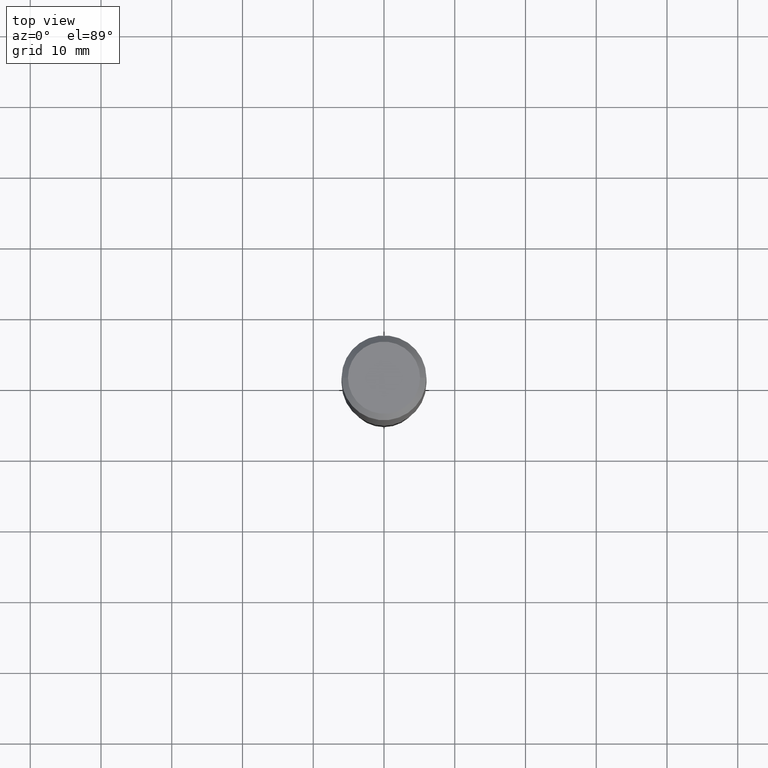
[diagram: clean part render]
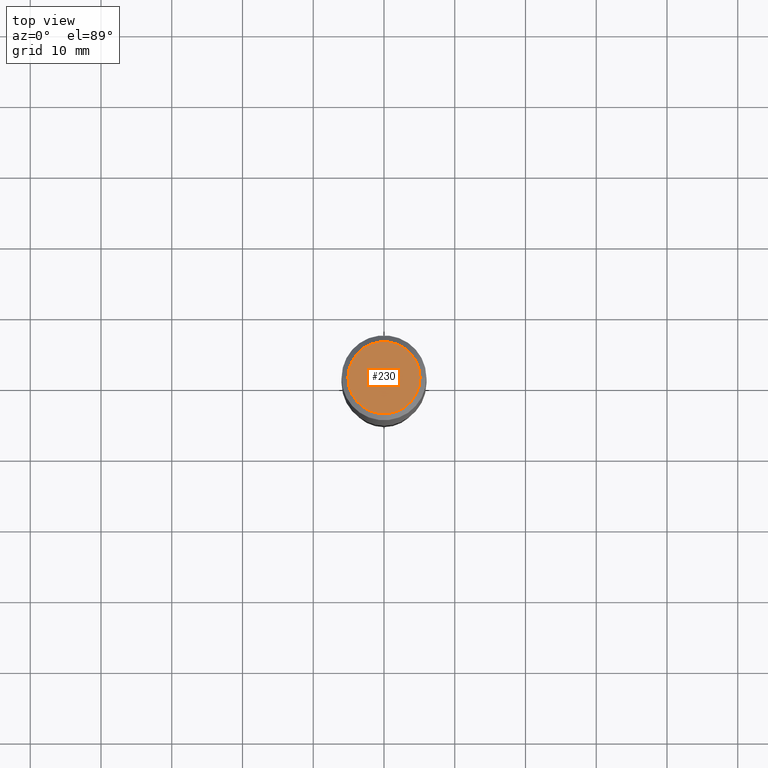
[diagram: same view with one face highlighted and labeled with its STEP entity id]
A machine part, top view. The second image highlights one B-rep face of the part: STEP entity #230.
In plain terms, the highlighted planar face has unit normal (0, -0, -1).
Its self-contained STEP definition (entity closure, byte-faithful):
#12 = EDGE_CURVE ( 'NONE', #435, #448, #154, .T. ) ;
#16 = AXIS2_PLACEMENT_3D ( 'NONE', #92, #436, #256 ) ;
#55 = PLANE ( 'NONE',  #16 ) ;
#85 = EDGE_LOOP ( 'NONE', ( #254, #444 ) ) ;
#92 = CARTESIAN_POINT ( 'NONE',  ( -5.008488096090115757E-47, 7.150793614331959538E-33, 2.048068690724057264E-18 ) ) ;
#120 = DIRECTION ( 'NONE',  ( 1.000000000000000000, -6.982962677686266711E-15, 4.876140833081945105E-29 ) ) ;
#154 = CIRCLE ( 'NONE', #263, 0.2007700000000000040 ) ;
#158 = DIRECTION ( 'NONE',  ( 1.000000000000000000, -6.982962677686266711E-15, 4.876140833081945105E-29 ) ) ;
#180 = CARTESIAN_POINT ( 'NONE',  ( 0.2007700000000000040, -1.560767496960719672E-15, 4.096137381458473721E-18 ) ) ;
#184 = CIRCLE ( 'NONE', #466, 0.2007700000000000040 ) ;
#185 = CARTESIAN_POINT ( 'NONE',  ( -0.2007700000000000040, 1.463821008716677338E-15, 4.096137381438094301E-18 ) ) ;
#189 = EDGE_CURVE ( 'NONE', #448, #435, #184, .T. ) ;
#203 = CARTESIAN_POINT ( 'NONE',  ( -1.001697619218023151E-46, 1.430158722866391908E-32, 4.096137381448114529E-18 ) ) ;
#230 = ADVANCED_FACE ( 'NONE', ( #401 ), #55, .F. ) ;
#240 = DIRECTION ( 'NONE',  ( -2.445468806185136597E-29, 3.491481338843145583E-15, 1.000000000000000000 ) ) ;
#254 = ORIENTED_EDGE ( 'NONE', *, *, #189, .T. ) ;
#256 = DIRECTION ( 'NONE',  ( -1.000000000000000000, 6.982962677686265922E-15, -4.876176775795935793E-29 ) ) ;
#263 = AXIS2_PLACEMENT_3D ( 'NONE', #335, #240, #120 ) ;
#335 = CARTESIAN_POINT ( 'NONE',  ( -1.001697619218023151E-46, 1.430158722866391908E-32, 4.096137381448114529E-18 ) ) ;
#401 = FACE_OUTER_BOUND ( 'NONE', #85, .T. ) ;
#435 = VERTEX_POINT ( 'NONE', #180 ) ;
#436 = DIRECTION ( 'NONE',  ( 2.438088387897960049E-29, -3.491481338843145188E-15, -1.000000000000000000 ) ) ;
#444 = ORIENTED_EDGE ( 'NONE', *, *, #12, .T. ) ;
#448 = VERTEX_POINT ( 'NONE', #185 ) ;
#466 = AXIS2_PLACEMENT_3D ( 'NONE', #203, #475, #158 ) ;
#475 = DIRECTION ( 'NONE',  ( -2.445468806185136597E-29, 3.491481338843145583E-15, 1.000000000000000000 ) ) ;